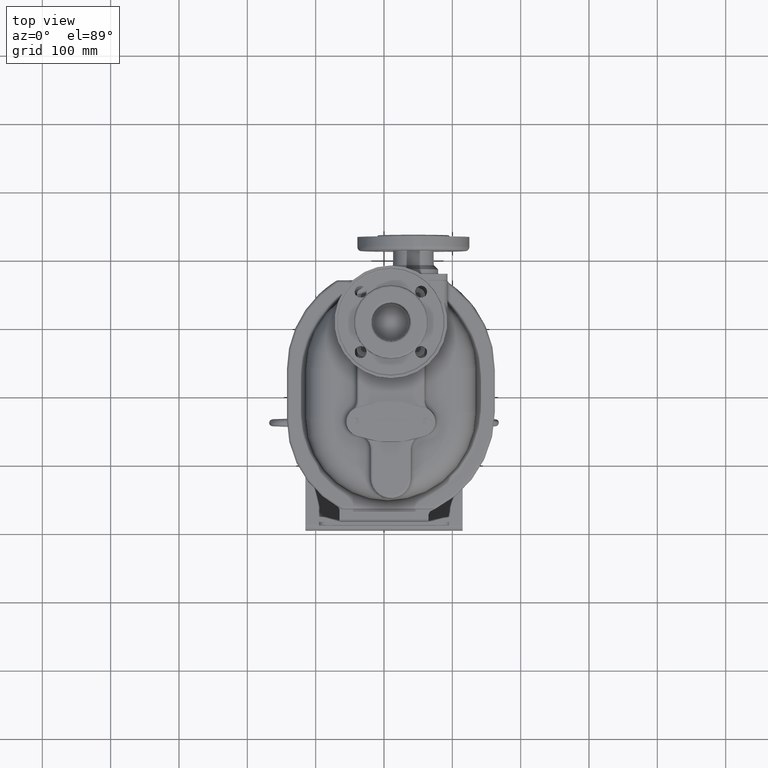
[diagram: clean part render]
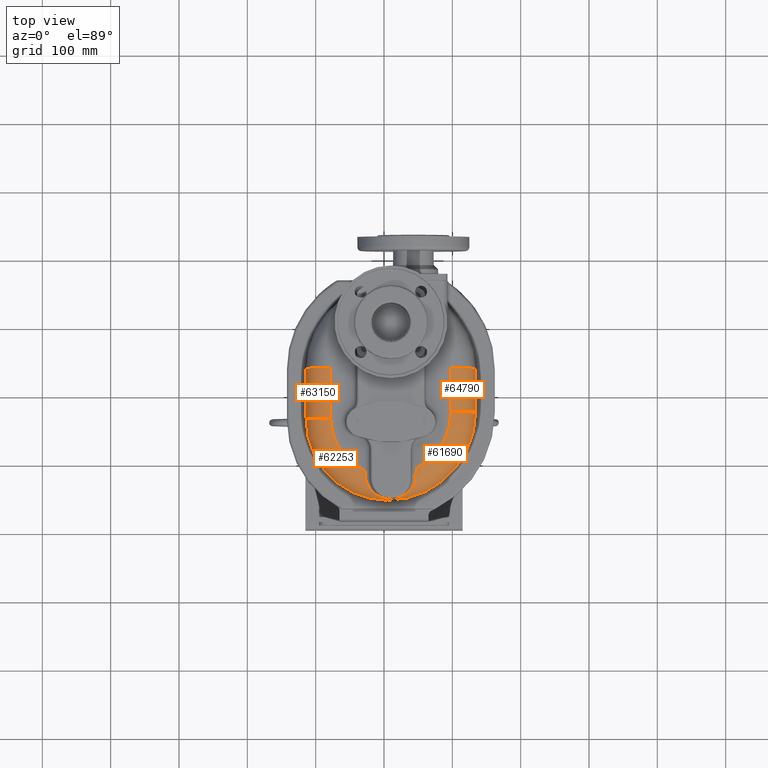
[diagram: same view with one multi-face feature highlighted, each face labeled with its STEP entity id]
A machine part, top view. The highlighted faces form ONE feature: a constant-radius fillet chain: 4 tangent blend faces with common blend radius 36 mm. The faces share edges in the B-rep.
Their STEP definitions:
[1] entity #64790 (Cylinder):
#12053=DIRECTION('',(0.E0,1.E0,0.E0));
#12054=VECTOR('',#12053,6.4E1);
#12055=CARTESIAN_POINT('',(9.8E1,1.65E2,8.4E1));
#12056=LINE('',#12055,#12054);
#12555=DIRECTION('',(0.E0,1.E0,0.E0));
#12556=VECTOR('',#12555,6.4E1);
#12557=CARTESIAN_POINT('',(1.34E2,1.65E2,4.8E1));
#12558=LINE('',#12557,#12556);
#12683=CARTESIAN_POINT('',(9.8E1,2.29E2,4.8E1));
#12684=DIRECTION('',(0.E0,1.E0,0.E0));
#12685=DIRECTION('',(0.E0,0.E0,1.E0));
#12686=AXIS2_PLACEMENT_3D('',#12683,#12684,#12685);
#13476=CARTESIAN_POINT('',(9.8E1,1.65E2,4.8E1));
#13477=DIRECTION('',(0.E0,1.E0,0.E0));
#13478=DIRECTION('',(0.E0,0.E0,1.E0));
#13479=AXIS2_PLACEMENT_3D('',#13476,#13477,#13478);
#38693=CARTESIAN_POINT('',(9.8E1,1.65E2,8.4E1));
#38694=CARTESIAN_POINT('',(9.8E1,2.29E2,8.4E1));
#38695=VERTEX_POINT('',#38693);
#38696=VERTEX_POINT('',#38694);
#38697=CARTESIAN_POINT('',(1.34E2,1.65E2,4.8E1));
#38698=CARTESIAN_POINT('',(1.34E2,2.29E2,4.8E1));
#38699=VERTEX_POINT('',#38697);
#38700=VERTEX_POINT('',#38698);
#64779=CARTESIAN_POINT('',(9.8E1,1.649781564E2,4.8E1));
#64780=DIRECTION('',(0.E0,1.E0,0.E0));
#64781=DIRECTION('',(0.E0,0.E0,1.E0));
#64782=AXIS2_PLACEMENT_3D('',#64779,#64780,#64781);
#64783=CYLINDRICAL_SURFACE('',#64782,3.6E1);
#64784=ORIENTED_EDGE('',*,*,#61576,.T.);
#64785=ORIENTED_EDGE('',*,*,#63221,.T.);
#64786=ORIENTED_EDGE('',*,*,#63187,.F.);
#64787=ORIENTED_EDGE('',*,*,#61682,.F.);
#64788=EDGE_LOOP('',(#64784,#64785,#64786,#64787));
#64789=FACE_OUTER_BOUND('',#64788,.F.);
#64790=ADVANCED_FACE('',(#64789),#64783,.T.);
#12687=CIRCLE('',#12686,3.6E1);
#13480=CIRCLE('',#13479,3.6E1);
#61576=EDGE_CURVE('',#38695,#38696,#12056,.T.);
#61682=EDGE_CURVE('',#38695,#38699,#13480,.T.);
#63187=EDGE_CURVE('',#38699,#38700,#12558,.T.);
#63221=EDGE_CURVE('',#38696,#38700,#12687,.T.);
[2] entity #61690 (Torus):
#12057=CARTESIAN_POINT('',(5.E0,1.65E2,8.4E1));
#12058=DIRECTION('',(0.E0,0.E0,1.E0));
#12059=DIRECTION('',(4.623655913954E-1,-8.866893818545E-1,0.E0));
#12060=AXIS2_PLACEMENT_3D('',#12057,#12058,#12059);
#12072=CARTESIAN_POINT('',(5.E0,3.790667748790E1,5.956050864305E1));
#12073=CARTESIAN_POINT('',(5.244708909877E0,3.787851770718E1,5.947746208673E1));
#12074=CARTESIAN_POINT('',(5.724705178502E0,3.782793061494E1,5.932211304233E1));
#12075=CARTESIAN_POINT('',(6.413720475741E0,3.776775967918E1,5.912068004852E1));
#12076=CARTESIAN_POINT('',(7.076609140445E0,3.772127943457E1,5.894782859928E1));
#12077=CARTESIAN_POINT('',(7.716526203015E0,3.768699100014E1,5.880138739014E1));
#12078=CARTESIAN_POINT('',(8.336997827785E0,3.766363572305E1,5.867932613679E1));
#12079=CARTESIAN_POINT('',(8.941253645545E0,3.765023330849E1,5.857997515355E1));
#12080=CARTESIAN_POINT('',(9.532405803381E0,3.764603069732E1,5.850195732175E1));
#12081=CARTESIAN_POINT('',(1.011341266516E1,3.765048202750E1,5.844419359864E1));
#12082=CARTESIAN_POINT('',(1.068711730766E1,3.766322696867E1,5.840588551555E1));
#12083=CARTESIAN_POINT('',(1.125627127465E1,3.768407666623E1,5.838650554610E1));
#12084=CARTESIAN_POINT('',(1.182356874431E1,3.771300388366E1,5.838578588841E1));
#12085=CARTESIAN_POINT('',(1.239167607903E1,3.775013980031E1,5.840371622456E1));
#12086=CARTESIAN_POINT('',(1.296326870130E1,3.779577575242E1,5.844054370601E1));
#12087=CARTESIAN_POINT('',(1.354105977679E1,3.785036970565E1,5.849677703828E1));
#12088=CARTESIAN_POINT('',(1.412783214415E1,3.791455778603E1,5.857319329998E1));
#12089=CARTESIAN_POINT('',(1.472646706325E1,3.798917146614E1,5.867084929222E1));
#12090=CARTESIAN_POINT('',(1.533996501374E1,3.807526006475E1,5.879109581638E1));
#12091=CARTESIAN_POINT('',(1.597145818122E1,3.817411742216E1,5.893558944746E1));
#12092=CARTESIAN_POINT('',(1.662420719467E1,3.828731213520E1,5.910629993922E1));
#12093=CARTESIAN_POINT('',(1.730157493636E1,3.841671883955E1,5.930550627733E1));
#12094=CARTESIAN_POINT('',(1.800695998722E1,3.856454544934E1,5.953577194267E1));
#12095=CARTESIAN_POINT('',(1.874367833729E1,3.873334855625E1,5.979988482942E1));
#12096=CARTESIAN_POINT('',(1.951475949439E1,3.892602034742E1,6.010073760008E1));
#12097=CARTESIAN_POINT('',(2.032268513438E1,3.914574044495E1,6.044114598791E1));
#12098=CARTESIAN_POINT('',(2.116896726403E1,3.939584679852E1,6.082355015523E1));
#12099=CARTESIAN_POINT('',(2.205365371526E1,3.967961391784E1,6.124961355566E1));
#12100=CARTESIAN_POINT('',(2.297509670039E1,4.000003104198E1,6.171989757451E1));
#12101=CARTESIAN_POINT('',(2.392973545714E1,4.035951681600E1,6.223354233655E1));
#12102=CARTESIAN_POINT('',(2.491207558220E1,4.075963156156E1,6.278806537650E1));
#12103=CARTESIAN_POINT('',(2.591518229664E1,4.120096825825E1,6.337951162992E1));
#12104=CARTESIAN_POINT('',(2.693133270714E1,4.168317514033E1,6.400281197460E1));
#12105=CARTESIAN_POINT('',(2.795264905621E1,4.220507059022E1,6.465223117733E1));
#12106=CARTESIAN_POINT('',(2.897177927849E1,4.276490988423E1,6.532192025930E1));
#12107=CARTESIAN_POINT('',(2.998224641538E1,4.336060975511E1,6.600629790408E1));
#12108=CARTESIAN_POINT('',(3.097859065452E1,4.398993295776E1,6.670028883377E1));
#12109=CARTESIAN_POINT('',(3.195634930009E1,4.465061351781E1,6.739942683503E1));
#12110=CARTESIAN_POINT('',(3.291194482135E1,4.534042693225E1,6.809986070793E1));
#12111=CARTESIAN_POINT('',(3.384253649953E1,4.605721849704E1,6.879830315908E1));
#12112=CARTESIAN_POINT('',(3.474588063935E1,4.679891192502E1,6.949196107496E1));
#12113=CARTESIAN_POINT('',(3.562020946788E1,4.756350619218E1,7.017846202682E1));
#12114=CARTESIAN_POINT('',(3.646413263467E1,4.834906695715E1,7.085578603710E1));
#12115=CARTESIAN_POINT('',(3.727656262694E1,4.915371885186E1,7.152220835974E1));
#12116=CARTESIAN_POINT('',(3.805665774087E1,4.997563835384E1,7.217625174664E1));
#12117=CARTESIAN_POINT('',(3.880377952351E1,5.081304857467E1,7.281664794559E1));
#12118=CARTESIAN_POINT('',(3.951746140868E1,5.166421647694E1,7.344230728128E1));
#12119=CARTESIAN_POINT('',(4.019738480653E1,5.252745142292E1,7.405229414786E1));
#12120=CARTESIAN_POINT('',(4.084336107387E1,5.340110543063E1,7.464580764386E1));
#12121=CARTESIAN_POINT('',(4.145531737546E1,5.428357447841E1,7.522216597626E1));
#12122=CARTESIAN_POINT('',(4.203328527410E1,5.517330058688E1,7.578079378601E1));
#12123=CARTESIAN_POINT('',(4.257739126447E1,5.606877454697E1,7.632121177696E1));
#12124=CARTESIAN_POINT('',(4.308784855734E1,5.696853900143E1,7.684302804389E1));
#12125=CARTESIAN_POINT('',(4.356494955247E1,5.787119143619E1,7.734593054251E1));
#12126=CARTESIAN_POINT('',(4.400905911944E1,5.877538770507E1,7.782968081154E1));
#12127=CARTESIAN_POINT('',(4.442060781861E1,5.967984476234E1,7.829410801595E1));
#12128=CARTESIAN_POINT('',(4.480008557122E1,6.058334364972E1,7.873910378228E1));
#12129=CARTESIAN_POINT('',(4.514803534354E1,6.148473208191E1,7.916461733028E1));
#12130=CARTESIAN_POINT('',(4.546504679125E1,6.238292637060E1,7.957065074576E1));
#12131=CARTESIAN_POINT('',(4.575175013509E1,6.327691358474E1,7.995725471197E1));
#12132=CARTESIAN_POINT('',(4.600880966418E1,6.416575161624E1,8.032452373832E1));
#12133=CARTESIAN_POINT('',(4.623691836684E1,6.504857358052E1,8.067259326181E1));
#12134=CARTESIAN_POINT('',(4.643679035477E1,6.592458010078E1,8.100163271824E1));
#12135=CARTESIAN_POINT('',(4.660915916357E1,6.679306663347E1,8.131185045523E1));
#12136=CARTESIAN_POINT('',(4.675475869656E1,6.765333597604E1,8.160346139038E1));
#12137=CARTESIAN_POINT('',(4.687434909699E1,6.850492596284E1,8.187675556859E1));
#12138=CARTESIAN_POINT('',(4.696864141025E1,6.934703023634E1,8.213191703999E1));
#12139=CARTESIAN_POINT('',(4.701516855599E1,6.990218075913E1,8.229023822901E1));
#12140=CARTESIAN_POINT('',(4.703446095104E1,7.017807645928E1,8.236648476307E1));
#12142=CARTESIAN_POINT('',(4.703446095104E1,7.017807645928E1,8.236648476307E1));
#12143=CARTESIAN_POINT('',(4.706106796778E1,7.055858102513E1,8.247164099206E1));
#12144=CARTESIAN_POINT('',(4.711528481374E1,7.132632626168E1,8.267257293733E1));
#12145=CARTESIAN_POINT('',(4.719965314713E1,7.249701384692E1,8.294497537196E1));
#12146=CARTESIAN_POINT('',(4.728719507150E1,7.368681505726E1,8.318783963594E1));
#12147=CARTESIAN_POINT('',(4.737802058141E1,7.489545836863E1,8.340052131149E1));
#12148=CARTESIAN_POINT('',(4.747225442330E1,7.612279462099E1,8.358238917504E1));
#12149=CARTESIAN_POINT('',(4.757002501039E1,7.736865854406E1,8.373278627283E1));
#12150=CARTESIAN_POINT('',(4.767146701404E1,7.863290263167E1,8.385103918925E1));
#12151=CARTESIAN_POINT('',(4.777672672746E1,7.991544822632E1,8.393645243976E1));
#12152=CARTESIAN_POINT('',(4.788594031510E1,8.121605665032E1,8.398830434233E1));
#12153=CARTESIAN_POINT('',(4.796151744412E1,8.209541928996E1,8.399999997636E1));
#12154=CARTESIAN_POINT('',(4.8E1,8.253788748751E1,8.4E1));
#12156=CARTESIAN_POINT('',(5.E0,7.2E1,4.8E1));
#12157=DIRECTION('',(1.E0,0.E0,0.E0));
#12158=DIRECTION('',(0.E0,-9.470367364472E-1,3.211252400848E-1));
#12159=AXIS2_PLACEMENT_3D('',#12156,#12157,#12158);
#12234=CARTESIAN_POINT('',(5.E0,3.790667748790E1,5.956050864305E1));
#12542=CARTESIAN_POINT('',(5.E0,1.65E2,4.8E1));
#12543=DIRECTION('',(0.E0,0.E0,1.E0));
#12544=DIRECTION('',(0.E0,-1.E0,0.E0));
#12545=AXIS2_PLACEMENT_3D('',#12542,#12543,#12544);
#13476=CARTESIAN_POINT('',(9.8E1,1.65E2,4.8E1));
#13477=DIRECTION('',(0.E0,1.E0,0.E0));
#13478=DIRECTION('',(0.E0,0.E0,1.E0));
#13479=AXIS2_PLACEMENT_3D('',#13476,#13477,#13478);
#38693=CARTESIAN_POINT('',(9.8E1,1.65E2,8.4E1));
#38695=VERTEX_POINT('',#38693);
#38697=CARTESIAN_POINT('',(1.34E2,1.65E2,4.8E1));
#38699=VERTEX_POINT('',#38697);
#38701=CARTESIAN_POINT('',(4.999999999999E0,3.6E1,4.8E1));
#38702=VERTEX_POINT('',#38701);
#38744=VERTEX_POINT('',#12234);
#38746=VERTEX_POINT('',#12140);
#38748=VERTEX_POINT('',#12154);
#61673=CARTESIAN_POINT('',(5.E0,1.65E2,4.8E1));
#61674=DIRECTION('',(0.E0,0.E0,-1.E0));
#61675=DIRECTION('',(-1.693302317542E-4,-9.999999856636E-1,0.E0));
#61676=AXIS2_PLACEMENT_3D('',#61673,#61674,#61675);
#61677=TOROIDAL_SURFACE('',#61676,9.3E1,3.6E1);
#61679=ORIENTED_EDGE('',*,*,#61678,.T.);
#61680=ORIENTED_EDGE('',*,*,#61663,.T.);
#61681=ORIENTED_EDGE('',*,*,#61578,.T.);
#61683=ORIENTED_EDGE('',*,*,#61682,.T.);
#61685=ORIENTED_EDGE('',*,*,#61684,.F.);
#61687=ORIENTED_EDGE('',*,*,#61686,.F.);
#61688=EDGE_LOOP('',(#61679,#61680,#61681,#61683,#61685,#61687));
#61689=FACE_OUTER_BOUND('',#61688,.F.);
#61690=ADVANCED_FACE('',(#61689),#61677,.T.);
#12061=CIRCLE('',#12060,9.3E1);
#12141=B_SPLINE_CURVE_WITH_KNOTS('',3,(#12072,#12073,#12074,#12075,#12076,
#12077,#12078,#12079,#12080,#12081,#12082,#12083,#12084,#12085,#12086,#12087,
#12088,#12089,#12090,#12091,#12092,#12093,#12094,#12095,#12096,#12097,#12098,
#12099,#12100,#12101,#12102,#12103,#12104,#12105,#12106,#12107,#12108,#12109,
#12110,#12111,#12112,#12113,#12114,#12115,#12116,#12117,#12118,#12119,#12120,
#12121,#12122,#12123,#12124,#12125,#12126,#12127,#12128,#12129,#12130,#12131,
#12132,#12133,#12134,#12135,#12136,#12137,#12138,#12139,#12140),.UNSPECIFIED.,
.F.,.F.,(4,1,1,1,1,1,1,1,1,1,1,1,1,1,1,1,1,1,1,1,1,1,1,1,1,1,1,1,1,1,1,1,1,1,1,
1,1,1,1,1,1,1,1,1,1,1,1,1,1,1,1,1,1,1,1,1,1,1,1,1,1,1,1,1,1,1,4),(0.E0,
1.515151515152E-2,3.030303030303E-2,4.545454545455E-2,6.060606060606E-2,
7.575757575758E-2,9.090909090909E-2,1.060606060606E-1,1.212121212121E-1,
1.363636363636E-1,1.515151515152E-1,1.666666666667E-1,1.818181818182E-1,
1.969696969697E-1,2.121212121212E-1,2.272727272727E-1,2.424242424242E-1,
2.575757575758E-1,2.727272727273E-1,2.878787878788E-1,3.030303030303E-1,
3.181818181818E-1,3.333333333333E-1,3.484848484848E-1,3.636363636364E-1,
3.787878787879E-1,3.939393939394E-1,4.090909090909E-1,4.242424242424E-1,
4.393939393939E-1,4.545454545455E-1,4.696969696970E-1,4.848484848485E-1,5.E-1,
5.151515151515E-1,5.303030303030E-1,5.454545454545E-1,5.606060606061E-1,
5.757575757576E-1,5.909090909091E-1,6.060606060606E-1,6.212121212121E-1,
6.363636363636E-1,6.515151515152E-1,6.666666666667E-1,6.818181818182E-1,
6.969696969697E-1,7.121212121212E-1,7.272727272727E-1,7.424242424242E-1,
7.575757575758E-1,7.727272727273E-1,7.878787878788E-1,8.030303030303E-1,
8.181818181818E-1,8.333333333333E-1,8.484848484848E-1,8.636363636364E-1,
8.787878787879E-1,8.939393939394E-1,9.090909090909E-1,9.242424242424E-1,
9.393939393939E-1,9.545454545455E-1,9.696969696970E-1,9.848484848485E-1,1.E0),
.UNSPECIFIED.);
#12155=B_SPLINE_CURVE_WITH_KNOTS('',3,(#12142,#12143,#12144,#12145,#12146,
#12147,#12148,#12149,#12150,#12151,#12152,#12153,#12154),.UNSPECIFIED.,.F.,.F.,(
4,1,1,1,1,1,1,1,1,1,4),(0.E0,1.E-1,2.E-1,3.E-1,4.E-1,5.E-1,6.E-1,7.E-1,8.E-1,
9.E-1,1.E0),.UNSPECIFIED.);
#12160=CIRCLE('',#12159,3.6E1);
#12546=CIRCLE('',#12545,1.29E2);
#13480=CIRCLE('',#13479,3.6E1);
#61578=EDGE_CURVE('',#38748,#38695,#12061,.T.);
#61663=EDGE_CURVE('',#38746,#38748,#12155,.T.);
#61678=EDGE_CURVE('',#38744,#38746,#12141,.T.);
#61682=EDGE_CURVE('',#38695,#38699,#13480,.T.);
#61684=EDGE_CURVE('',#38702,#38699,#12546,.T.);
#61686=EDGE_CURVE('',#38744,#38702,#12160,.T.);
[3] entity #62253 (Torus):
#12156=CARTESIAN_POINT('',(5.E0,7.2E1,4.8E1));
#12157=DIRECTION('',(1.E0,0.E0,0.E0));
#12158=DIRECTION('',(0.E0,-9.470367364472E-1,3.211252400848E-1));
#12159=AXIS2_PLACEMENT_3D('',#12156,#12157,#12158);
#12171=CARTESIAN_POINT('',(-2.8E1,7.884226894123E1,8.4E1));
#12172=CARTESIAN_POINT('',(-2.796887335442E1,7.844482621410E1,
8.399999997615E1));
#12173=CARTESIAN_POINT('',(-2.790773889932E1,7.765366918214E1,
8.398965294363E1));
#12174=CARTESIAN_POINT('',(-2.781935700238E1,7.647946031069E1,
8.394360526421E1));
#12175=CARTESIAN_POINT('',(-2.773414064813E1,7.531769571966E1,
8.386752703401E1));
#12176=CARTESIAN_POINT('',(-2.765197814064E1,7.416871936770E1,
8.376190215763E1));
#12177=CARTESIAN_POINT('',(-2.757275213691E1,7.303276223749E1,
8.362720156811E1));
#12178=CARTESIAN_POINT('',(-2.749635265713E1,7.191008760233E1,
8.346388172989E1));
#12179=CARTESIAN_POINT('',(-2.742268197510E1,7.080105447963E1,
8.327240920041E1));
#12180=CARTESIAN_POINT('',(-2.737531113419E1,7.007085606924E1,
8.312626078228E1));
#12181=CARTESIAN_POINT('',(-2.735205480582E1,6.970821914830E1,
8.304866082929E1));
#12183=CARTESIAN_POINT('',(-2.735205480582E1,6.970821914830E1,
8.304866082929E1));
#12184=CARTESIAN_POINT('',(-2.733506702982E1,6.944333312177E1,
8.299197838754E1));
#12185=CARTESIAN_POINT('',(-2.729365067701E1,6.891054423816E1,
8.287320386509E1));
#12186=CARTESIAN_POINT('',(-2.720861721266E1,6.810292424292E1,
8.267861022019E1));
#12187=CARTESIAN_POINT('',(-2.709998633077E1,6.728676671709E1,
8.246719675105E1));
#12188=CARTESIAN_POINT('',(-2.696712752290E1,6.646272181276E1,
8.223874572294E1));
#12189=CARTESIAN_POINT('',(-2.680936846517E1,6.563117099338E1,
8.199296987110E1));
#12190=CARTESIAN_POINT('',(-2.662605019077E1,6.479268387211E1,
8.172962639141E1));
#12191=CARTESIAN_POINT('',(-2.641651116625E1,6.394785035173E1,
8.144847779957E1));
#12192=CARTESIAN_POINT('',(-2.618009970314E1,6.309733790166E1,
8.114930967858E1));
#12193=CARTESIAN_POINT('',(-2.591617665159E1,6.224187509509E1,
8.083192954160E1));
#12194=CARTESIAN_POINT('',(-2.562412126974E1,6.138225653823E1,
8.049617142217E1));
#12195=CARTESIAN_POINT('',(-2.530333633348E1,6.051934141158E1,
8.014189892427E1));
#12196=CARTESIAN_POINT('',(-2.495325350619E1,5.965405311886E1,
7.976900868750E1));
#12197=CARTESIAN_POINT('',(-2.457333860447E1,5.878737793606E1,
7.937743369338E1));
#12198=CARTESIAN_POINT('',(-2.416309685851E1,5.792036340624E1,
7.896714663396E1));
#12199=CARTESIAN_POINT('',(-2.372207837150E1,5.705411676285E1,
7.853816355169E1));
#12200=CARTESIAN_POINT('',(-2.324988315131E1,5.618980214433E1,
7.809054716787E1));
#12201=CARTESIAN_POINT('',(-2.274616637860E1,5.532863809976E1,
7.762441062673E1));
#12202=CARTESIAN_POINT('',(-2.221064343787E1,5.447189438491E1,
7.713992122378E1));
#12203=CARTESIAN_POINT('',(-2.164309503947E1,5.362088870435E1,
7.663730449218E1));
#12204=CARTESIAN_POINT('',(-2.104337232981E1,5.277698314329E1,
7.611684859587E1));
#12205=CARTESIAN_POINT('',(-2.041140218633E1,5.194158053117E1,
7.557890926073E1));
#12206=CARTESIAN_POINT('',(-1.974719272740E1,5.111612064981E1,
7.502391532228E1));
#12207=CARTESIAN_POINT('',(-1.905083937689E1,5.030207656484E1,
7.445237523273E1));
#12208=CARTESIAN_POINT('',(-1.832253171382E1,4.950095106789E1,
7.386488475885E1));
#12209=CARTESIAN_POINT('',(-1.756256139461E1,4.871427323612E1,
7.326213614895E1));
#12210=CARTESIAN_POINT('',(-1.677133217686E1,4.794359569630E1,
7.264492960288E1));
#12211=CARTESIAN_POINT('',(-1.594937201179E1,4.719049187728E1,
7.201418699668E1));
#12212=CARTESIAN_POINT('',(-1.509734938998E1,4.645655449543E1,
7.137096948445E1));
#12213=CARTESIAN_POINT('',(-1.421609435858E1,4.574339432873E1,
7.071649908693E1));
#12214=CARTESIAN_POINT('',(-1.330662686067E1,4.505264003120E1,
7.005218592933E1));
#12215=CARTESIAN_POINT('',(-1.237019450456E1,4.438593852243E1,
6.937966206206E1));
#12216=CARTESIAN_POINT('',(-1.140832303049E1,4.374495574049E1,
6.870082321632E1));
#12217=CARTESIAN_POINT('',(-1.042288232655E1,4.313137651769E1,
6.801787893526E1));
#12218=CARTESIAN_POINT('',(-9.416172200176E0,4.254690246470E1,
6.733341152634E1));
#12219=CARTESIAN_POINT('',(-8.391026777500E0,4.199324318742E1,
6.665043943625E1));
#12220=CARTESIAN_POINT('',(-7.350937144428E0,4.147209731216E1,
6.597247976564E1));
#12221=CARTESIAN_POINT('',(-6.300174870832E0,4.098511321891E1,
6.530359229029E1));
#12222=CARTESIAN_POINT('',(-5.243895330833E0,4.053382284783E1,
6.464838451407E1));
#12223=CARTESIAN_POINT('',(-4.188151540611E0,4.011953144889E1,
6.401193047520E1));
#12224=CARTESIAN_POINT('',(-3.139808161606E0,3.974318221899E1,
6.339959857333E1));
#12225=CARTESIAN_POINT('',(-2.106179500850E0,3.940516615658E1,
6.281669849873E1));
#12226=CARTESIAN_POINT('',(-1.094558676794E0,3.910518191326E1,
6.226807867071E1));
#12227=CARTESIAN_POINT('',(-1.115560433838E-1,3.884213606269E1,
6.175766259163E1));
#12228=CARTESIAN_POINT('',(8.375364557941E-1,3.861415841496E1,
6.128808666304E1));
#12229=CARTESIAN_POINT('',(1.749071453210E0,3.841876093870E1,6.086059297184E1));
#12230=CARTESIAN_POINT('',(2.621311378866E0,3.825302277921E1,6.047503136011E1));
#12231=CARTESIAN_POINT('',(3.454174649291E0,3.811387181742E1,6.013017738922E1));
#12232=CARTESIAN_POINT('',(4.248220830536E0,3.799836281671E1,5.982427999743E1));
#12233=CARTESIAN_POINT('',(4.753663599509E0,3.793516079517E1,5.964450929975E1));
#12234=CARTESIAN_POINT('',(5.E0,3.790667748790E1,5.956050864305E1));
#12236=CARTESIAN_POINT('',(-7.8E1,1.55E2,4.8E1));
#12237=DIRECTION('',(0.E0,-1.E0,0.E0));
#12238=DIRECTION('',(0.E0,0.E0,1.E0));
#12239=AXIS2_PLACEMENT_3D('',#12236,#12237,#12238);
#12274=CARTESIAN_POINT('',(5.E0,1.55E2,8.4E1));
#12275=DIRECTION('',(0.E0,0.E0,1.E0));
#12276=DIRECTION('',(-1.E0,0.E0,0.E0));
#12277=AXIS2_PLACEMENT_3D('',#12274,#12275,#12276);
#12524=CARTESIAN_POINT('',(5.E0,1.55E2,4.8E1));
#12525=DIRECTION('',(0.E0,0.E0,1.E0));
#12526=DIRECTION('',(-1.E0,0.E0,0.E0));
#12527=AXIS2_PLACEMENT_3D('',#12524,#12525,#12526);
#38701=CARTESIAN_POINT('',(4.999999999999E0,3.6E1,4.8E1));
#38702=VERTEX_POINT('',#38701);
#38703=CARTESIAN_POINT('',(-1.14E2,1.55E2,4.8E1));
#38704=VERTEX_POINT('',#38703);
#38706=CARTESIAN_POINT('',(-7.8E1,1.55E2,8.4E1));
#38708=VERTEX_POINT('',#38706);
#38738=CARTESIAN_POINT('',(-2.8E1,7.884226894123E1,8.4E1));
#38739=VERTEX_POINT('',#38738);
#38742=VERTEX_POINT('',#12181);
#38744=VERTEX_POINT('',#12234);
#62236=CARTESIAN_POINT('',(5.E0,1.55E2,4.8E1));
#62237=DIRECTION('',(0.E0,0.E0,-1.E0));
#62238=DIRECTION('',(-9.999999831529E-1,1.835596628325E-4,0.E0));
#62239=AXIS2_PLACEMENT_3D('',#62236,#62237,#62238);
#62240=TOROIDAL_SURFACE('',#62239,8.3E1,3.6E1);
#62242=ORIENTED_EDGE('',*,*,#62241,.T.);
#62243=ORIENTED_EDGE('',*,*,#62226,.T.);
#62244=ORIENTED_EDGE('',*,*,#61686,.T.);
#62246=ORIENTED_EDGE('',*,*,#62245,.F.);
#62248=ORIENTED_EDGE('',*,*,#62247,.F.);
#62250=ORIENTED_EDGE('',*,*,#62249,.T.);
#62251=EDGE_LOOP('',(#62242,#62243,#62244,#62246,#62248,#62250));
#62252=FACE_OUTER_BOUND('',#62251,.F.);
#62253=ADVANCED_FACE('',(#62252),#62240,.T.);
#12160=CIRCLE('',#12159,3.6E1);
#12182=B_SPLINE_CURVE_WITH_KNOTS('',3,(#12171,#12172,#12173,#12174,#12175,
#12176,#12177,#12178,#12179,#12180,#12181),.UNSPECIFIED.,.F.,.F.,(4,1,1,1,1,1,1,
1,4),(0.E0,1.25E-1,2.5E-1,3.75E-1,5.E-1,6.25E-1,7.5E-1,8.75E-1,1.E0),
.UNSPECIFIED.);
#12235=B_SPLINE_CURVE_WITH_KNOTS('',3,(#12183,#12184,#12185,#12186,#12187,
#12188,#12189,#12190,#12191,#12192,#12193,#12194,#12195,#12196,#12197,#12198,
#12199,#12200,#12201,#12202,#12203,#12204,#12205,#12206,#12207,#12208,#12209,
#12210,#12211,#12212,#12213,#12214,#12215,#12216,#12217,#12218,#12219,#12220,
#12221,#12222,#12223,#12224,#12225,#12226,#12227,#12228,#12229,#12230,#12231,
#12232,#12233,#12234),.UNSPECIFIED.,.F.,.F.,(4,1,1,1,1,1,1,1,1,1,1,1,1,1,1,1,1,
1,1,1,1,1,1,1,1,1,1,1,1,1,1,1,1,1,1,1,1,1,1,1,1,1,1,1,1,1,1,1,1,4),(0.E0,
2.040816326531E-2,4.081632653061E-2,6.122448979592E-2,8.163265306122E-2,
1.020408163265E-1,1.224489795918E-1,1.428571428571E-1,1.632653061224E-1,
1.836734693878E-1,2.040816326531E-1,2.244897959184E-1,2.448979591837E-1,
2.653061224490E-1,2.857142857143E-1,3.061224489796E-1,3.265306122449E-1,
3.469387755102E-1,3.673469387755E-1,3.877551020408E-1,4.081632653061E-1,
4.285714285714E-1,4.489795918367E-1,4.693877551020E-1,4.897959183673E-1,
5.102040816327E-1,5.306122448980E-1,5.510204081633E-1,5.714285714286E-1,
5.918367346939E-1,6.122448979592E-1,6.326530612245E-1,6.530612244898E-1,
6.734693877551E-1,6.938775510204E-1,7.142857142857E-1,7.346938775510E-1,
7.551020408163E-1,7.755102040816E-1,7.959183673469E-1,8.163265306122E-1,
8.367346938776E-1,8.571428571429E-1,8.775510204082E-1,8.979591836735E-1,
9.183673469388E-1,9.387755102041E-1,9.591836734694E-1,9.795918367347E-1,1.E0),
.UNSPECIFIED.);
#12240=CIRCLE('',#12239,3.6E1);
#12278=CIRCLE('',#12277,8.3E1);
#12528=CIRCLE('',#12527,1.19E2);
#61686=EDGE_CURVE('',#38744,#38702,#12160,.T.);
#62226=EDGE_CURVE('',#38742,#38744,#12235,.T.);
#62241=EDGE_CURVE('',#38739,#38742,#12182,.T.);
#62245=EDGE_CURVE('',#38704,#38702,#12528,.T.);
#62247=EDGE_CURVE('',#38708,#38704,#12240,.T.);
#62249=EDGE_CURVE('',#38708,#38739,#12278,.T.);
[4] entity #63150 (Cylinder):
#12236=CARTESIAN_POINT('',(-7.8E1,1.55E2,4.8E1));
#12237=DIRECTION('',(0.E0,-1.E0,0.E0));
#12238=DIRECTION('',(0.E0,0.E0,1.E0));
#12239=AXIS2_PLACEMENT_3D('',#12236,#12237,#12238);
#12279=DIRECTION('',(0.E0,-1.E0,0.E0));
#12280=VECTOR('',#12279,7.4E1);
#12281=CARTESIAN_POINT('',(-7.8E1,2.29E2,8.4E1));
#12282=LINE('',#12281,#12280);
#12506=DIRECTION('',(0.E0,-1.E0,0.E0));
#12507=VECTOR('',#12506,7.4E1);
#12508=CARTESIAN_POINT('',(-1.14E2,2.29E2,4.8E1));
#12509=LINE('',#12508,#12507);
#12514=CARTESIAN_POINT('',(-7.8E1,2.29E2,4.8E1));
#12515=DIRECTION('',(0.E0,-1.E0,0.E0));
#12516=DIRECTION('',(0.E0,0.E0,1.E0));
#12517=AXIS2_PLACEMENT_3D('',#12514,#12515,#12516);
#38703=CARTESIAN_POINT('',(-1.14E2,1.55E2,4.8E1));
#38704=VERTEX_POINT('',#38703);
#38705=CARTESIAN_POINT('',(-7.8E1,2.29E2,8.4E1));
#38706=CARTESIAN_POINT('',(-7.8E1,1.55E2,8.4E1));
#38707=VERTEX_POINT('',#38705);
#38708=VERTEX_POINT('',#38706);
#38709=CARTESIAN_POINT('',(-1.14E2,2.29E2,4.8E1));
#38710=VERTEX_POINT('',#38709);
#63139=CARTESIAN_POINT('',(-7.8E1,2.290218436E2,4.8E1));
#63140=DIRECTION('',(0.E0,-1.E0,0.E0));
#63141=DIRECTION('',(0.E0,0.E0,1.E0));
#63142=AXIS2_PLACEMENT_3D('',#63139,#63140,#63141);
#63143=CYLINDRICAL_SURFACE('',#63142,3.6E1);
#63144=ORIENTED_EDGE('',*,*,#62346,.T.);
#63145=ORIENTED_EDGE('',*,*,#62247,.T.);
#63146=ORIENTED_EDGE('',*,*,#63132,.F.);
#63147=ORIENTED_EDGE('',*,*,#62520,.F.);
#63148=EDGE_LOOP('',(#63144,#63145,#63146,#63147));
#63149=FACE_OUTER_BOUND('',#63148,.F.);
#63150=ADVANCED_FACE('',(#63149),#63143,.T.);
#12240=CIRCLE('',#12239,3.6E1);
#12518=CIRCLE('',#12517,3.6E1);
#62247=EDGE_CURVE('',#38708,#38704,#12240,.T.);
#62346=EDGE_CURVE('',#38707,#38708,#12282,.T.);
#62520=EDGE_CURVE('',#38707,#38710,#12518,.T.);
#63132=EDGE_CURVE('',#38710,#38704,#12509,.T.);